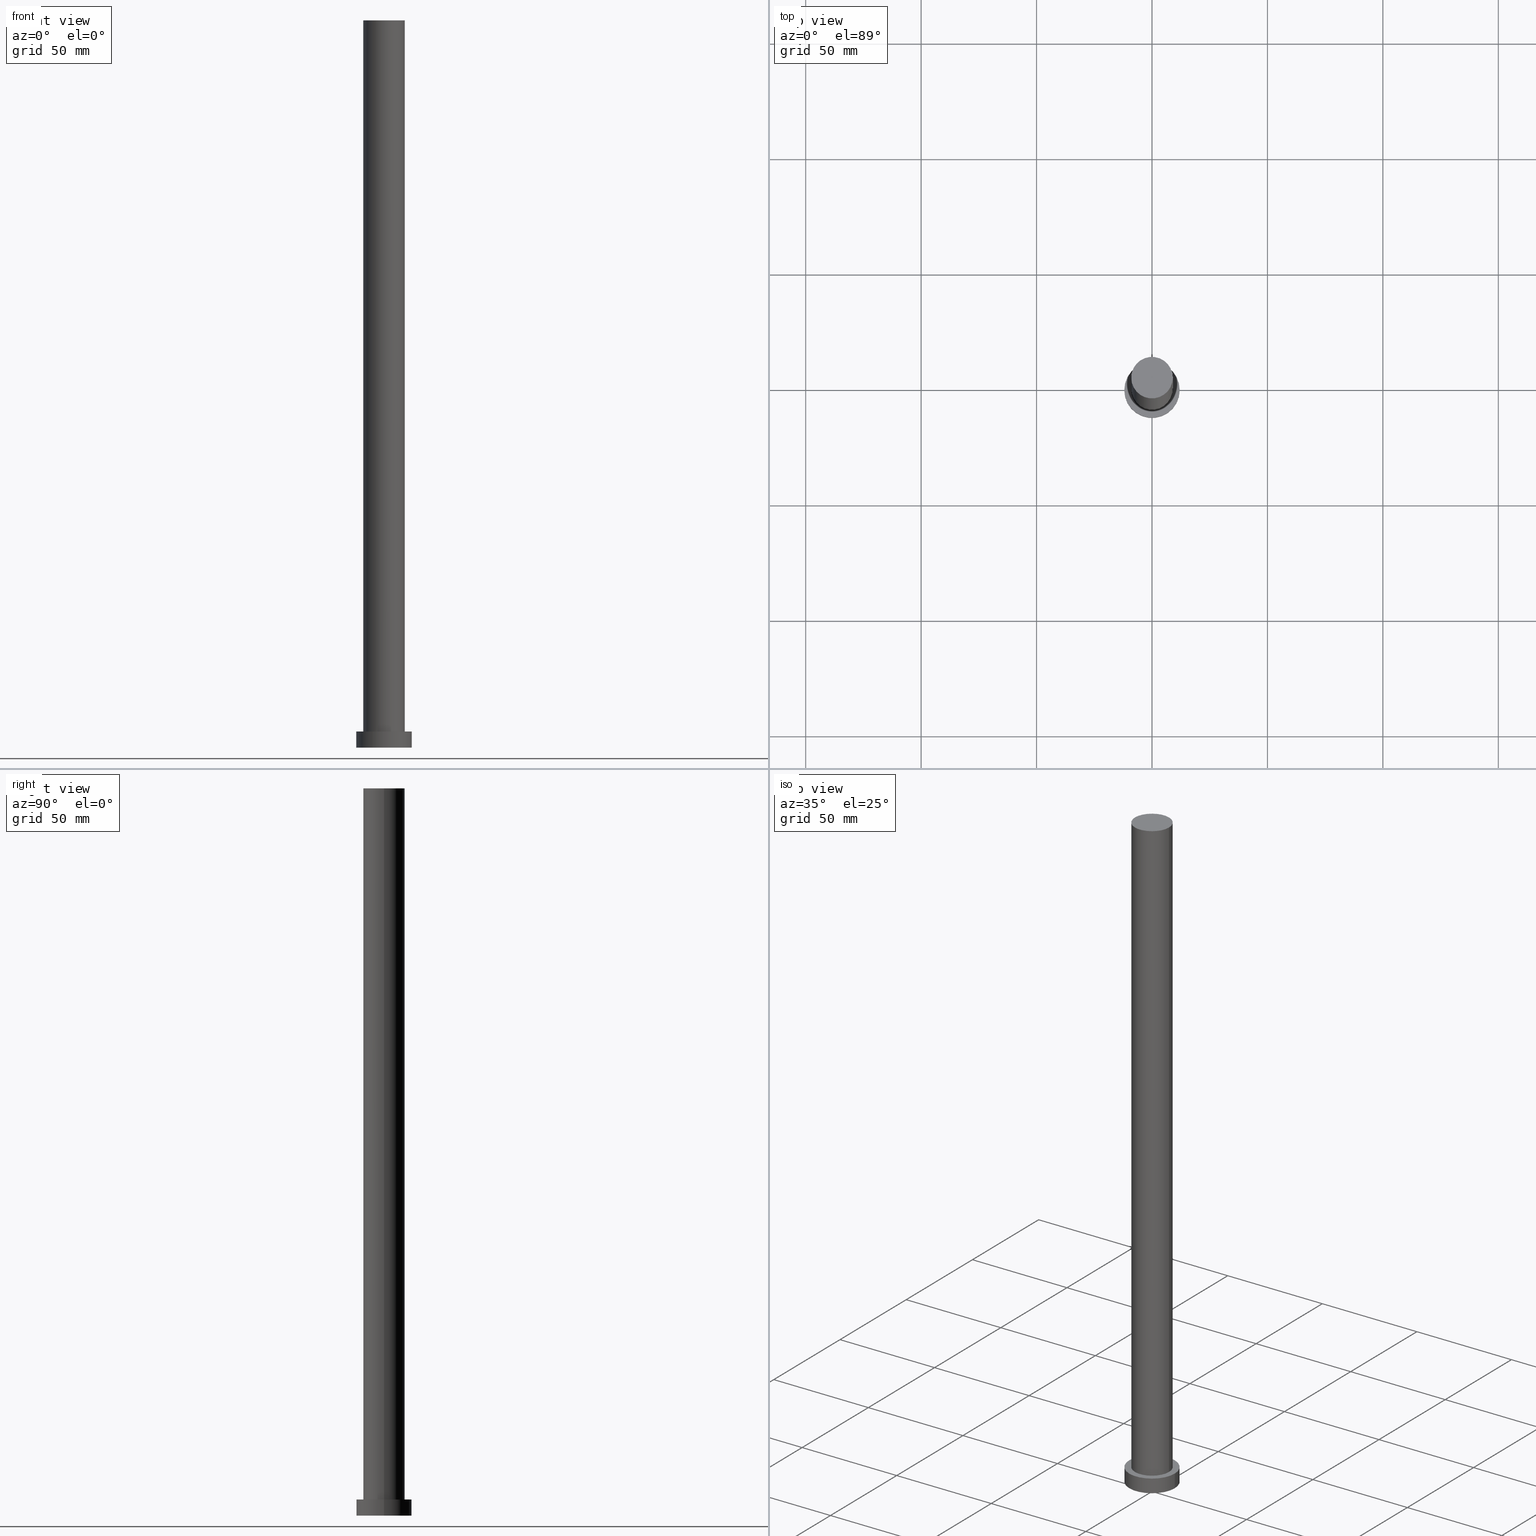
[diagram: canonical four-view strip — front | top / right | iso, engineering-drawing reading convention]
A machine part, canonical four-view strip (front | top / right | iso — engineering-drawing reading convention). The complete STEP part file that produces these views, byte-faithful:
ISO-10303-21;
HEADER;
FILE_DESCRIPTION (( 'STEP AP203' ),
    '1' );
FILE_NAME ('7137.STEP',
    '2023-02-13T07:35:36',
    ( '' ),
    ( '' ),
    'SwSTEP 2.0',
    'SolidWorks 2019',
    '' );
FILE_SCHEMA (( 'CONFIG_CONTROL_DESIGN' ));
ENDSEC;

DATA;
#1 = UNCERTAINTY_MEASURE_WITH_UNIT (LENGTH_MEASURE( 1.000000000000000082E-05 ), #151, 'distance_accuracy_value', 'NONE');
#2 = CARTESIAN_POINT ( 'NONE',  ( -12.00000000000000178, 0.000000000000000000, 7.000000000000000000 ) ) ;
#3 = CIRCLE ( 'NONE', #143, 12.00000000000000178 ) ;
#4 = CIRCLE ( 'NONE', #161, 9.000000000000000000 ) ;
#5 = APPROVAL_STATUS ( 'not_yet_approved' ) ;
#6 = ADVANCED_FACE ( 'NONE', ( #8, #174 ), #65, .T. ) ;
#7 = DIRECTION ( 'NONE',  ( 1.000000000000000000, 0.000000000000000000, -0.000000000000000000 ) ) ;
#8 = FACE_BOUND ( 'NONE', #58, .T. ) ;
#9 = EDGE_LOOP ( 'NONE', ( #119, #251 ) ) ;
#10 = LINE ( 'NONE', #42, #104 ) ;
#11 = CIRCLE ( 'NONE', #122, 9.000000000000000000 ) ;
#12 = AXIS2_PLACEMENT_3D ( 'NONE', #238, #40, #160 ) ;
#13 = DIRECTION ( 'NONE',  ( 0.000000000000000000, 0.000000000000000000, 1.000000000000000000 ) ) ;
#14 = ORIENTED_EDGE ( 'NONE', *, *, #249, .F. ) ;
#15 = ADVANCED_BREP_SHAPE_REPRESENTATION ( '7137', ( #59, #35 ), #128 ) ;
#16 = PRODUCT ( '7137', '7137', '', ( #50 ) ) ;
#17 = APPROVAL_PERSON_ORGANIZATION ( #57, #71, #253 ) ;
#18 =( NAMED_UNIT ( * ) SI_UNIT ( $, .STERADIAN. ) SOLID_ANGLE_UNIT ( ) );
#19 = CARTESIAN_POINT ( 'NONE',  ( 9.000000000000000000, 1.102182119232617714E-15, 315.0000000000000000 ) ) ;
#20 = CIRCLE ( 'NONE', #237, 12.00000000000000178 ) ;
#21 = EDGE_CURVE ( 'NONE', #254, #188, #4, .T. ) ;
#22 = DIRECTION ( 'NONE',  ( -0.000000000000000000, -0.000000000000000000, -1.000000000000000000 ) ) ;
#23 = CALENDAR_DATE ( 2023, 13, 2 ) ;
#24 = ORIENTED_EDGE ( 'NONE', *, *, #200, .F. ) ;
#25 = DIRECTION ( 'NONE',  ( 0.000000000000000000, 0.000000000000000000, 1.000000000000000000 ) ) ;
#26 = CALENDAR_DATE ( 2023, 13, 2 ) ;
#27 = ORIENTED_EDGE ( 'NONE', *, *, #46, .F. ) ;
#28 = DATE_AND_TIME ( #248, #170 ) ;
#29 = ORGANIZATION ( 'NEUR�EN�', 'NEUR�EN�', '' ) ;
#30 = PERSON_AND_ORGANIZATION ( #97, #29 ) ;
#31 = ORIENTED_EDGE ( 'NONE', *, *, #70, .T. ) ;
#32 = ORIENTED_EDGE ( 'NONE', *, *, #21, .F. ) ;
#33 = CARTESIAN_POINT ( 'NONE',  ( 9.000000000000000000, 1.102182119232617714E-15, 7.000000000000000000 ) ) ;
#34 = APPROVAL_ROLE ( '' ) ;
#35 = AXIS2_PLACEMENT_3D ( 'NONE', #142, #113, #56 ) ;
#36 = VECTOR ( 'NONE', #108, 1000.000000000000000 ) ;
#37 = CC_DESIGN_PERSON_AND_ORGANIZATION_ASSIGNMENT ( #165, #48, ( #81 ) ) ;
#38 = CARTESIAN_POINT ( 'NONE',  ( 0.000000000000000000, 0.000000000000000000, 0.000000000000000000 ) ) ;
#39 = PERSON_AND_ORGANIZATION_ROLE ( 'design_supplier' ) ;
#40 = DIRECTION ( 'NONE',  ( 0.000000000000000000, 0.000000000000000000, 1.000000000000000000 ) ) ;
#41 = CC_DESIGN_SECURITY_CLASSIFICATION ( #81, ( #194 ) ) ;
#42 = CARTESIAN_POINT ( 'NONE',  ( 9.000000000000000000, 1.102182119232617714E-15, 315.0000000000000000 ) ) ;
#43 = EDGE_CURVE ( 'NONE', #188, #254, #210, .T. ) ;
#44 = DIRECTION ( 'NONE',  ( -1.000000000000000000, 0.000000000000000000, 0.000000000000000000 ) ) ;
#45 = EDGE_LOOP ( 'NONE', ( #120, #86, #77, #27 ) ) ;
#46 = EDGE_CURVE ( 'NONE', #244, #73, #116, .T. ) ;
#47 = VECTOR ( 'NONE', #22, 1000.000000000000000 ) ;
#48 = PERSON_AND_ORGANIZATION_ROLE ( 'classification_officer' ) ;
#49 = FACE_OUTER_BOUND ( 'NONE', #136, .T. ) ;
#50 = MECHANICAL_CONTEXT ( 'NONE', #199, 'mechanical' ) ;
#51 = DIRECTION ( 'NONE',  ( 1.000000000000000000, 0.000000000000000000, 0.000000000000000000 ) ) ;
#52 = APPROVAL_PERSON_ORGANIZATION ( #148, #92, #34 ) ;
#53 = LOCAL_TIME ( 8, 35, 36.00000000000000000, #109 ) ;
#54 = APPLICATION_PROTOCOL_DEFINITION ( 'international standard', 'config_control_design', 1994, #199 ) ;
#55 = DATE_TIME_ROLE ( 'classification_date' ) ;
#56 = DIRECTION ( 'NONE',  ( 1.000000000000000000, 0.000000000000000000, 0.000000000000000000 ) ) ;
#57 = PERSON_AND_ORGANIZATION ( #97, #29 ) ;
#58 = EDGE_LOOP ( 'NONE', ( #247, #32 ) ) ;
#59 = MANIFOLD_SOLID_BREP ( 'P�idat vysunut�m3', #67 ) ;
#60 = ORIENTED_EDGE ( 'NONE', *, *, #123, .F. ) ;
#61 = CARTESIAN_POINT ( 'NONE',  ( 12.00000000000000178, 1.469576158976824144E-15, 0.000000000000000000 ) ) ;
#62 = PERSON_AND_ORGANIZATION_ROLE ( 'creator' ) ;
#63 = DATE_AND_TIME ( #226, #240 ) ;
#64 = APPROVAL_DATE_TIME ( #189, #92 ) ;
#65 = PLANE ( 'NONE',  #12 ) ;
#66 = AXIS2_PLACEMENT_3D ( 'NONE', #180, #169, #224 ) ;
#67 = CLOSED_SHELL ( 'NONE', ( #156, #101, #205, #6, #181, #230, #212 ) ) ;
#68 = ORIENTED_EDGE ( 'NONE', *, *, #70, .F. ) ;
#69 = DIRECTION ( 'NONE',  ( 1.000000000000000000, 0.000000000000000000, 0.000000000000000000 ) ) ;
#70 = EDGE_CURVE ( 'NONE', #234, #254, #10, .T. ) ;
#71 = APPROVAL ( #150, 'NEUR�EN�' ) ;
#72 = DIRECTION ( 'NONE',  ( 0.000000000000000000, 0.000000000000000000, 1.000000000000000000 ) ) ;
#73 = VERTEX_POINT ( 'NONE', #219 ) ;
#74 = APPROVAL_ROLE ( '' ) ;
#75 = COORDINATED_UNIVERSAL_TIME_OFFSET ( 1, 0, .AHEAD. ) ;
#76 = AXIS2_PLACEMENT_3D ( 'NONE', #201, #133, #203 ) ;
#77 = ORIENTED_EDGE ( 'NONE', *, *, #117, .T. ) ;
#78 = CARTESIAN_POINT ( 'NONE',  ( 0.000000000000000000, 0.000000000000000000, 7.000000000000000000 ) ) ;
#79 = EDGE_CURVE ( 'NONE', #209, #234, #242, .T. ) ;
#80 = ORIENTED_EDGE ( 'NONE', *, *, #138, .T. ) ;
#81 = SECURITY_CLASSIFICATION ( '', '', #145 ) ;
#82 = DATE_AND_TIME ( #23, #102 ) ;
#83 = DIRECTION ( 'NONE',  ( -0.000000000000000000, -0.000000000000000000, -1.000000000000000000 ) ) ;
#84 = DIRECTION ( 'NONE',  ( -1.000000000000000000, 0.000000000000000000, 0.000000000000000000 ) ) ;
#85 = CC_DESIGN_APPROVAL ( #92, ( #157 ) ) ;
#86 = ORIENTED_EDGE ( 'NONE', *, *, #249, .T. ) ;
#87 = ORIENTED_EDGE ( 'NONE', *, *, #138, .F. ) ;
#88 = FACE_OUTER_BOUND ( 'NONE', #45, .T. ) ;
#89 = CARTESIAN_POINT ( 'NONE',  ( 0.000000000000000000, 0.000000000000000000, 7.000000000000000000 ) ) ;
#90 = APPROVAL_PERSON_ORGANIZATION ( #195, #223, #74 ) ;
#91 = CARTESIAN_POINT ( 'NONE',  ( 0.000000000000000000, 0.000000000000000000, 7.000000000000000000 ) ) ;
#92 = APPROVAL ( #211, 'NEUR�EN�' ) ;
#93 = FACE_OUTER_BOUND ( 'NONE', #220, .T. ) ;
#94 = CIRCLE ( 'NONE', #196, 12.00000000000000178 ) ;
#95 = CARTESIAN_POINT ( 'NONE',  ( 0.000000000000000000, 0.000000000000000000, 7.000000000000000000 ) ) ;
#96 = PERSON_AND_ORGANIZATION_ROLE ( 'design_owner' ) ;
#97 = PERSON ( 'NEUR�EN�', 'NEUR�EN�', 'NEUR�EN�', ('NEUR�EN�'), ('NEUR�EN�'), ('NEUR�EN�') ) ;
#98 = ORIENTED_EDGE ( 'NONE', *, *, #179, .T. ) ;
#99 = AXIS2_PLACEMENT_3D ( 'NONE', #91, #134, #44 ) ;
#100 = PRODUCT_RELATED_PRODUCT_CATEGORY ( 'detail', '', ( #16 ) ) ;
#101 = ADVANCED_FACE ( 'NONE', ( #88 ), #132, .T. ) ;
#102 = LOCAL_TIME ( 8, 35, 36.00000000000000000, #126 ) ;
#103 = PLANE ( 'NONE',  #114 ) ;
#104 = VECTOR ( 'NONE', #204, 1000.000000000000000 ) ;
#105 = CARTESIAN_POINT ( 'NONE',  ( 0.000000000000000000, 0.000000000000000000, 315.0000000000000000 ) ) ;
#106 = DIRECTION ( 'NONE',  ( -1.000000000000000000, 0.000000000000000000, 0.000000000000000000 ) ) ;
#107 = CYLINDRICAL_SURFACE ( 'NONE', #183, 9.000000000000000000 ) ;
#108 = DIRECTION ( 'NONE',  ( -0.000000000000000000, -0.000000000000000000, -1.000000000000000000 ) ) ;
#109 = COORDINATED_UNIVERSAL_TIME_OFFSET ( 1, 0, .AHEAD. ) ;
#110 = DIRECTION ( 'NONE',  ( 0.000000000000000000, 0.000000000000000000, 1.000000000000000000 ) ) ;
#111 = ORIENTED_EDGE ( 'NONE', *, *, #118, .F. ) ;
#112 = APPROVAL_DATE_TIME ( #28, #71 ) ;
#113 = DIRECTION ( 'NONE',  ( 0.000000000000000000, 0.000000000000000000, 1.000000000000000000 ) ) ;
#114 = AXIS2_PLACEMENT_3D ( 'NONE', #105, #197, #7 ) ;
#115 = PLANE ( 'NONE',  #66 ) ;
#116 = LINE ( 'NONE', #208, #36 ) ;
#117 = EDGE_CURVE ( 'NONE', #241, #73, #94, .T. ) ;
#118 = EDGE_CURVE ( 'NONE', #234, #209, #11, .T. ) ;
#119 = ORIENTED_EDGE ( 'NONE', *, *, #79, .T. ) ;
#120 = ORIENTED_EDGE ( 'NONE', *, *, #179, .F. ) ;
#121 = CARTESIAN_POINT ( 'NONE',  ( 12.00000000000000178, 1.469576158976824144E-15, 7.000000000000000000 ) ) ;
#122 = AXIS2_PLACEMENT_3D ( 'NONE', #162, #110, #178 ) ;
#123 = EDGE_CURVE ( 'NONE', #244, #202, #3, .T. ) ;
#124 = CARTESIAN_POINT ( 'NONE',  ( -9.000000000000000000, 0.000000000000000000, 315.0000000000000000 ) ) ;
#125 = LINE ( 'NONE', #198, #47 ) ;
#126 = COORDINATED_UNIVERSAL_TIME_OFFSET ( 1, 0, .AHEAD. ) ;
#127 = ORIENTED_EDGE ( 'NONE', *, *, #21, .T. ) ;
#128 =( GEOMETRIC_REPRESENTATION_CONTEXT ( 3 ) GLOBAL_UNCERTAINTY_ASSIGNED_CONTEXT ( ( #1 ) ) GLOBAL_UNIT_ASSIGNED_CONTEXT ( ( #151, #147, #18 ) ) REPRESENTATION_CONTEXT ( 'NONE', 'WORKASPACE' ) );
#129 = APPROVAL_DATE_TIME ( #63, #223 ) ;
#130 = CARTESIAN_POINT ( 'NONE',  ( 0.000000000000000000, 0.000000000000000000, 315.0000000000000000 ) ) ;
#131 = CC_DESIGN_DATE_AND_TIME_ASSIGNMENT ( #182, #55, ( #81 ) ) ;
#132 = CYLINDRICAL_SURFACE ( 'NONE', #99, 12.00000000000000178 ) ;
#133 = DIRECTION ( 'NONE',  ( 0.000000000000000000, 0.000000000000000000, 1.000000000000000000 ) ) ;
#134 = DIRECTION ( 'NONE',  ( -0.000000000000000000, -0.000000000000000000, -1.000000000000000000 ) ) ;
#135 = DIRECTION ( 'NONE',  ( -0.000000000000000000, -0.000000000000000000, -1.000000000000000000 ) ) ;
#136 = EDGE_LOOP ( 'NONE', ( #87, #231 ) ) ;
#137 = CIRCLE ( 'NONE', #173, 12.00000000000000178 ) ;
#138 = EDGE_CURVE ( 'NONE', #73, #241, #20, .T. ) ;
#139 = COORDINATED_UNIVERSAL_TIME_OFFSET ( 1, 0, .AHEAD. ) ;
#140 = PRODUCT_DEFINITION_SHAPE ( 'NONE', 'NONE',  #157 ) ;
#141 = SHAPE_DEFINITION_REPRESENTATION ( #140, #15 ) ;
#142 = CARTESIAN_POINT ( 'NONE',  ( 0.000000000000000000, 0.000000000000000000, 0.000000000000000000 ) ) ;
#143 = AXIS2_PLACEMENT_3D ( 'NONE', #245, #72, #164 ) ;
#144 = DIRECTION ( 'NONE',  ( -1.000000000000000000, 0.000000000000000000, 0.000000000000000000 ) ) ;
#145 = SECURITY_CLASSIFICATION_LEVEL ( 'unclassified' ) ;
#146 = AXIS2_PLACEMENT_3D ( 'NONE', #130, #13, #175 ) ;
#147 =( NAMED_UNIT ( * ) PLANE_ANGLE_UNIT ( ) SI_UNIT ( $, .RADIAN. ) );
#148 = PERSON_AND_ORGANIZATION ( #97, #29 ) ;
#149 = CC_DESIGN_PERSON_AND_ORGANIZATION_ASSIGNMENT ( #158, #239, ( #194 ) ) ;
#150 = APPROVAL_STATUS ( 'not_yet_approved' ) ;
#151 =( LENGTH_UNIT ( ) NAMED_UNIT ( * ) SI_UNIT ( .MILLI., .METRE. ) );
#152 = ORIENTED_EDGE ( 'NONE', *, *, #43, .T. ) ;
#153 = COORDINATED_UNIVERSAL_TIME_OFFSET ( 1, 0, .AHEAD. ) ;
#154 = EDGE_LOOP ( 'NONE', ( #216, #98 ) ) ;
#155 = LINE ( 'NONE', #252, #167 ) ;
#156 = ADVANCED_FACE ( 'NONE', ( #93 ), #168, .T. ) ;
#157 = PRODUCT_DEFINITION ( 'NEZN�M�', '', #194, #193 ) ;
#158 = PERSON_AND_ORGANIZATION ( #97, #29 ) ;
#159 = DIRECTION ( 'NONE',  ( 0.000000000000000000, 0.000000000000000000, 1.000000000000000000 ) ) ;
#160 = DIRECTION ( 'NONE',  ( 1.000000000000000000, 0.000000000000000000, -0.000000000000000000 ) ) ;
#161 = AXIS2_PLACEMENT_3D ( 'NONE', #89, #159, #176 ) ;
#162 = CARTESIAN_POINT ( 'NONE',  ( 0.000000000000000000, 0.000000000000000000, 315.0000000000000000 ) ) ;
#163 = CARTESIAN_POINT ( 'NONE',  ( 0.000000000000000000, 0.000000000000000000, 315.0000000000000000 ) ) ;
#164 = DIRECTION ( 'NONE',  ( 1.000000000000000000, 0.000000000000000000, 0.000000000000000000 ) ) ;
#165 = PERSON_AND_ORGANIZATION ( #97, #29 ) ;
#166 = APPLICATION_CONTEXT ( 'configuration controlled 3d designs of mechanical parts and assemblies' ) ;
#167 = VECTOR ( 'NONE', #213, 1000.000000000000000 ) ;
#168 = CYLINDRICAL_SURFACE ( 'NONE', #221, 9.000000000000000000 ) ;
#169 = DIRECTION ( 'NONE',  ( 0.000000000000000000, 0.000000000000000000, 1.000000000000000000 ) ) ;
#170 = LOCAL_TIME ( 8, 35, 36.00000000000000000, #153 ) ;
#171 = EDGE_LOOP ( 'NONE', ( #68, #190, #222, #152 ) ) ;
#172 = DATE_TIME_ROLE ( 'creation_date' ) ;
#173 = AXIS2_PLACEMENT_3D ( 'NONE', #95, #225, #51 ) ;
#174 = FACE_OUTER_BOUND ( 'NONE', #154, .T. ) ;
#175 = DIRECTION ( 'NONE',  ( 1.000000000000000000, 0.000000000000000000, 0.000000000000000000 ) ) ;
#176 = DIRECTION ( 'NONE',  ( 1.000000000000000000, 0.000000000000000000, 0.000000000000000000 ) ) ;
#177 = CARTESIAN_POINT ( 'NONE',  ( 0.000000000000000000, 0.000000000000000000, 0.000000000000000000 ) ) ;
#178 = DIRECTION ( 'NONE',  ( 1.000000000000000000, 0.000000000000000000, 0.000000000000000000 ) ) ;
#179 = EDGE_CURVE ( 'NONE', #202, #244, #137, .T. ) ;
#180 = CARTESIAN_POINT ( 'NONE',  ( 0.000000000000000000, 0.000000000000000000, 0.000000000000000000 ) ) ;
#181 = ADVANCED_FACE ( 'NONE', ( #49 ), #115, .F. ) ;
#182 = DATE_AND_TIME ( #26, #187 ) ;
#183 = AXIS2_PLACEMENT_3D ( 'NONE', #184, #83, #106 ) ;
#184 = CARTESIAN_POINT ( 'NONE',  ( 0.000000000000000000, 0.000000000000000000, 315.0000000000000000 ) ) ;
#185 = CC_DESIGN_PERSON_AND_ORGANIZATION_ASSIGNMENT ( #227, #39, ( #194 ) ) ;
#186 = CALENDAR_DATE ( 2023, 13, 2 ) ;
#187 = LOCAL_TIME ( 8, 35, 36.00000000000000000, #139 ) ;
#188 = VERTEX_POINT ( 'NONE', #246 ) ;
#189 = DATE_AND_TIME ( #186, #53 ) ;
#190 = ORIENTED_EDGE ( 'NONE', *, *, #79, .F. ) ;
#191 = DIRECTION ( 'NONE',  ( 1.000000000000000000, 0.000000000000000000, 0.000000000000000000 ) ) ;
#192 = AXIS2_PLACEMENT_3D ( 'NONE', #78, #233, #84 ) ;
#193 = DESIGN_CONTEXT ( 'detailed design', #166, 'design' ) ;
#194 = PRODUCT_DEFINITION_FORMATION_WITH_SPECIFIED_SOURCE ( 'LIBOVOLN�', '', #16, .NOT_KNOWN. ) ;
#195 = PERSON_AND_ORGANIZATION ( #97, #29 ) ;
#196 = AXIS2_PLACEMENT_3D ( 'NONE', #177, #243, #69 ) ;
#197 = DIRECTION ( 'NONE',  ( 0.000000000000000000, 0.000000000000000000, 1.000000000000000000 ) ) ;
#198 = CARTESIAN_POINT ( 'NONE',  ( 12.00000000000000178, 1.469576158976824144E-15, 7.000000000000000000 ) ) ;
#199 = APPLICATION_CONTEXT ( 'configuration controlled 3d designs of mechanical parts and assemblies' ) ;
#200 = EDGE_CURVE ( 'NONE', #209, #188, #155, .T. ) ;
#201 = CARTESIAN_POINT ( 'NONE',  ( 0.000000000000000000, 0.000000000000000000, 7.000000000000000000 ) ) ;
#202 = VERTEX_POINT ( 'NONE', #121 ) ;
#203 = DIRECTION ( 'NONE',  ( 1.000000000000000000, 0.000000000000000000, 0.000000000000000000 ) ) ;
#204 = DIRECTION ( 'NONE',  ( -0.000000000000000000, -0.000000000000000000, -1.000000000000000000 ) ) ;
#205 = ADVANCED_FACE ( 'NONE', ( #255 ), #236, .T. ) ;
#206 = CC_DESIGN_PERSON_AND_ORGANIZATION_ASSIGNMENT ( #217, #62, ( #157 ) ) ;
#207 = CC_DESIGN_APPROVAL ( #71, ( #81 ) ) ;
#208 = CARTESIAN_POINT ( 'NONE',  ( -12.00000000000000178, 0.000000000000000000, 7.000000000000000000 ) ) ;
#209 = VERTEX_POINT ( 'NONE', #124 ) ;
#210 = CIRCLE ( 'NONE', #76, 9.000000000000000000 ) ;
#211 = APPROVAL_STATUS ( 'not_yet_approved' ) ;
#212 = ADVANCED_FACE ( 'NONE', ( #214 ), #103, .T. ) ;
#213 = DIRECTION ( 'NONE',  ( -0.000000000000000000, -0.000000000000000000, -1.000000000000000000 ) ) ;
#214 = FACE_OUTER_BOUND ( 'NONE', #9, .T. ) ;
#215 = CC_DESIGN_DATE_AND_TIME_ASSIGNMENT ( #82, #172, ( #157 ) ) ;
#216 = ORIENTED_EDGE ( 'NONE', *, *, #123, .T. ) ;
#217 = PERSON_AND_ORGANIZATION ( #97, #29 ) ;
#218 = FACE_OUTER_BOUND ( 'NONE', #171, .T. ) ;
#219 = CARTESIAN_POINT ( 'NONE',  ( -12.00000000000000178, 0.000000000000000000, 0.000000000000000000 ) ) ;
#220 = EDGE_LOOP ( 'NONE', ( #111, #31, #127, #24 ) ) ;
#221 = AXIS2_PLACEMENT_3D ( 'NONE', #163, #135, #144 ) ;
#222 = ORIENTED_EDGE ( 'NONE', *, *, #200, .T. ) ;
#223 = APPROVAL ( #5, 'NEUR�EN�' ) ;
#224 = DIRECTION ( 'NONE',  ( 1.000000000000000000, 0.000000000000000000, -0.000000000000000000 ) ) ;
#225 = DIRECTION ( 'NONE',  ( 0.000000000000000000, 0.000000000000000000, 1.000000000000000000 ) ) ;
#226 = CALENDAR_DATE ( 2023, 13, 2 ) ;
#227 = PERSON_AND_ORGANIZATION ( #97, #29 ) ;
#228 = CC_DESIGN_APPROVAL ( #223, ( #194 ) ) ;
#229 = APPLICATION_PROTOCOL_DEFINITION ( 'international standard', 'config_control_design', 1994, #166 ) ;
#230 = ADVANCED_FACE ( 'NONE', ( #218 ), #107, .T. ) ;
#231 = ORIENTED_EDGE ( 'NONE', *, *, #117, .F. ) ;
#232 = CC_DESIGN_PERSON_AND_ORGANIZATION_ASSIGNMENT ( #30, #96, ( #16 ) ) ;
#233 = DIRECTION ( 'NONE',  ( -0.000000000000000000, -0.000000000000000000, -1.000000000000000000 ) ) ;
#234 = VERTEX_POINT ( 'NONE', #19 ) ;
#235 = EDGE_LOOP ( 'NONE', ( #14, #60, #250, #80 ) ) ;
#236 = CYLINDRICAL_SURFACE ( 'NONE', #192, 12.00000000000000178 ) ;
#237 = AXIS2_PLACEMENT_3D ( 'NONE', #38, #25, #191 ) ;
#238 = CARTESIAN_POINT ( 'NONE',  ( 0.000000000000000000, 0.000000000000000000, 7.000000000000000000 ) ) ;
#239 = PERSON_AND_ORGANIZATION_ROLE ( 'creator' ) ;
#240 = LOCAL_TIME ( 8, 35, 36.00000000000000000, #75 ) ;
#241 = VERTEX_POINT ( 'NONE', #61 ) ;
#242 = CIRCLE ( 'NONE', #146, 9.000000000000000000 ) ;
#243 = DIRECTION ( 'NONE',  ( 0.000000000000000000, 0.000000000000000000, 1.000000000000000000 ) ) ;
#244 = VERTEX_POINT ( 'NONE', #2 ) ;
#245 = CARTESIAN_POINT ( 'NONE',  ( 0.000000000000000000, 0.000000000000000000, 7.000000000000000000 ) ) ;
#246 = CARTESIAN_POINT ( 'NONE',  ( -9.000000000000000000, 0.000000000000000000, 7.000000000000000000 ) ) ;
#247 = ORIENTED_EDGE ( 'NONE', *, *, #43, .F. ) ;
#248 = CALENDAR_DATE ( 2023, 13, 2 ) ;
#249 = EDGE_CURVE ( 'NONE', #202, #241, #125, .T. ) ;
#250 = ORIENTED_EDGE ( 'NONE', *, *, #46, .T. ) ;
#251 = ORIENTED_EDGE ( 'NONE', *, *, #118, .T. ) ;
#252 = CARTESIAN_POINT ( 'NONE',  ( -9.000000000000000000, 0.000000000000000000, 315.0000000000000000 ) ) ;
#253 = APPROVAL_ROLE ( '' ) ;
#254 = VERTEX_POINT ( 'NONE', #33 ) ;
#255 = FACE_OUTER_BOUND ( 'NONE', #235, .T. ) ;
ENDSEC;
END-ISO-10303-21;
